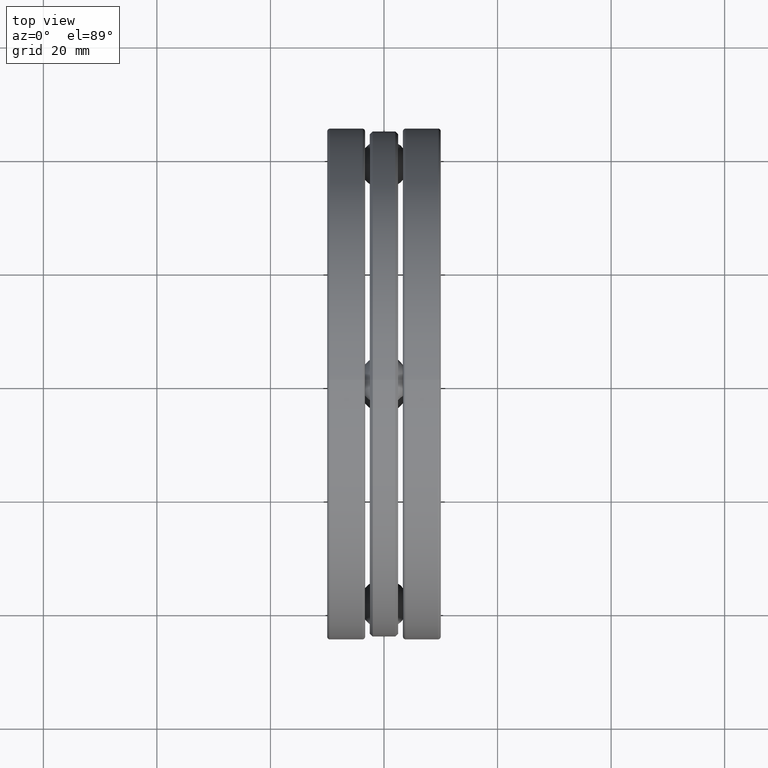
[diagram: clean part render]
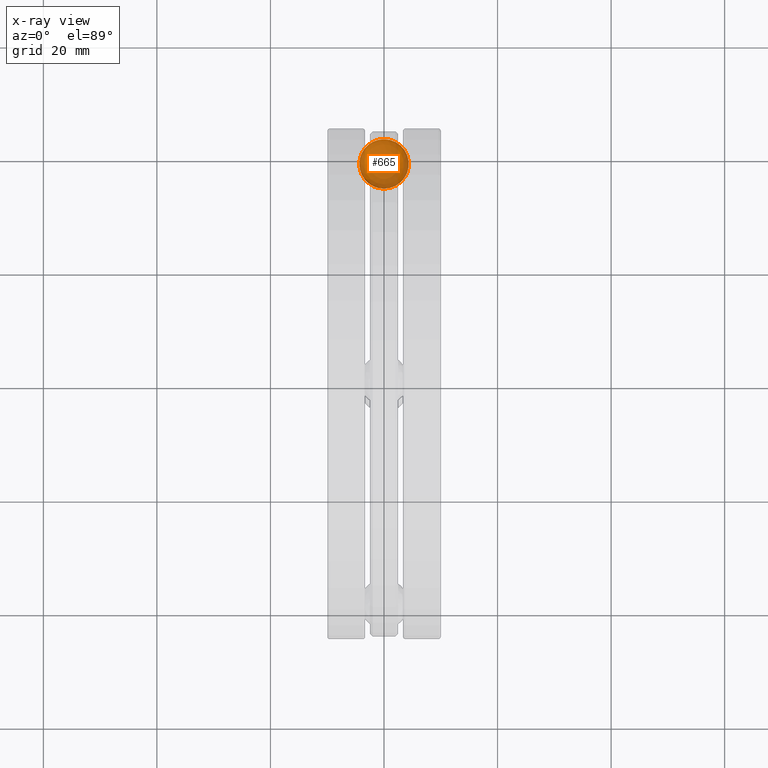
[diagram: x-ray — body ghosted, one internal face saturated and labeled with its STEP entity id]
A machine part, top view, then the same camera in x-ray: the body is ghosted and one INTERNAL B-rep face — a face not visible from any outside direction — is saturated and labeled: STEP entity #665.
In plain terms, the highlighted spherical surface has radius 4.3561 mm.
Its self-contained STEP definition (entity closure, byte-faithful):
#146 = EDGE_LOOP ( 'NONE', ( #882, #984 ) ) ;
#149 = DIRECTION ( 'NONE',  ( 0.0000000000000000000, -0.0000000000000000000, -1.000000000000000000 ) ) ;
#153 = AXIS2_PLACEMENT_3D ( 'NONE', #823, #1516, #699 ) ;
#399 = CIRCLE ( 'NONE', #835, 0.1715000000000000691 ) ;
#432 = EDGE_CURVE ( 'NONE', #1233, #1441, #399, .T. ) ;
#437 = EDGE_CURVE ( 'NONE', #1233, #1441, #1347, .T. ) ;
#503 = DIRECTION ( 'NONE',  ( -1.000000000000000000, 0.0000000000000000000, 0.0000000000000000000 ) ) ;
#665 = ADVANCED_FACE ( 'NONE', ( #1299 ), #1570, .T. ) ;
#699 = DIRECTION ( 'NONE',  ( 1.000000000000000000, 0.0000000000000000000, 1.224646799147352961E-16 ) ) ;
#823 = CARTESIAN_POINT ( 'NONE',  ( 1.085882525075789560E-16, 1.525625000000000009, 0.0000000000000000000 ) ) ;
#835 = AXIS2_PLACEMENT_3D ( 'NONE', #1091, #149, #1114 ) ;
#882 = ORIENTED_EDGE ( 'NONE', *, *, #437, .F. ) ;
#921 = CARTESIAN_POINT ( 'NONE',  ( 1.085882525075789560E-16, 1.525625000000000009, 0.0000000000000000000 ) ) ;
#984 = ORIENTED_EDGE ( 'NONE', *, *, #432, .T. ) ;
#1091 = CARTESIAN_POINT ( 'NONE',  ( 1.085882525075789560E-16, 1.525625000000000009, 0.0000000000000000000 ) ) ;
#1114 = DIRECTION ( 'NONE',  ( -1.000000000000000000, 0.0000000000000000000, 0.0000000000000000000 ) ) ;
#1164 = CARTESIAN_POINT ( 'NONE',  ( 1.295909451129560848E-16, 1.354124999999999801, 0.0000000000000000000 ) ) ;
#1233 = VERTEX_POINT ( 'NONE', #1164 ) ;
#1299 = FACE_OUTER_BOUND ( 'NONE', #146, .T. ) ;
#1344 = DIRECTION ( 'NONE',  ( 0.0000000000000000000, 0.0000000000000000000, 1.000000000000000000 ) ) ;
#1347 = CIRCLE ( 'NONE', #153, 0.1715000000000000691 ) ;
#1441 = VERTEX_POINT ( 'NONE', #1666 ) ;
#1516 = DIRECTION ( 'NONE',  ( -1.224646799147353207E-16, -2.249639673992786959E-32, 1.000000000000000000 ) ) ;
#1570 = SPHERICAL_SURFACE ( 'NONE', #1714, 0.1715000000000000691 ) ;
#1666 = CARTESIAN_POINT ( 'NONE',  ( 6.658286729682472307E-17, 1.697124999999999995, 0.0000000000000000000 ) ) ;
#1714 = AXIS2_PLACEMENT_3D ( 'NONE', #921, #1344, #503 ) ;